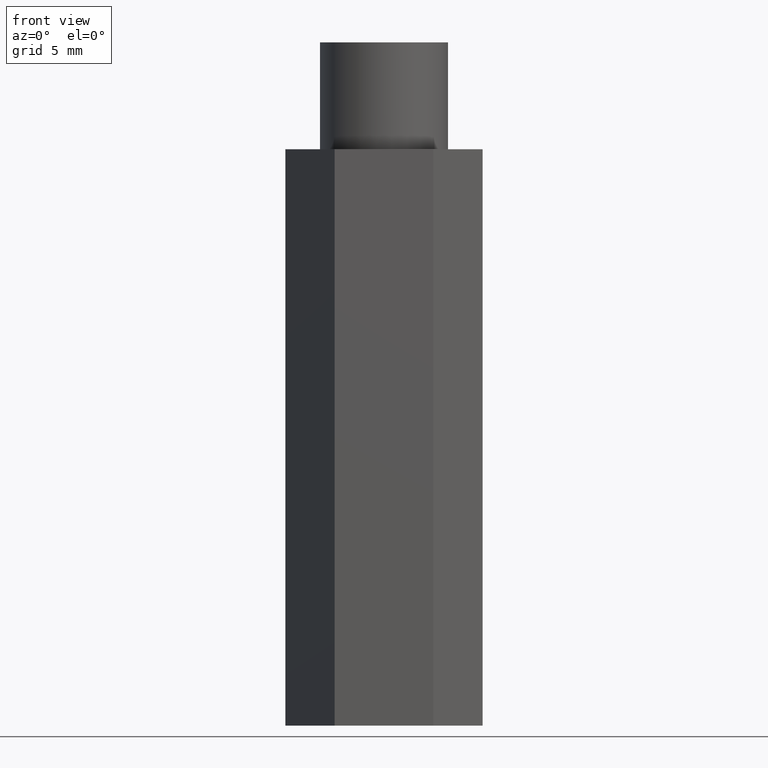
[diagram: clean part render]
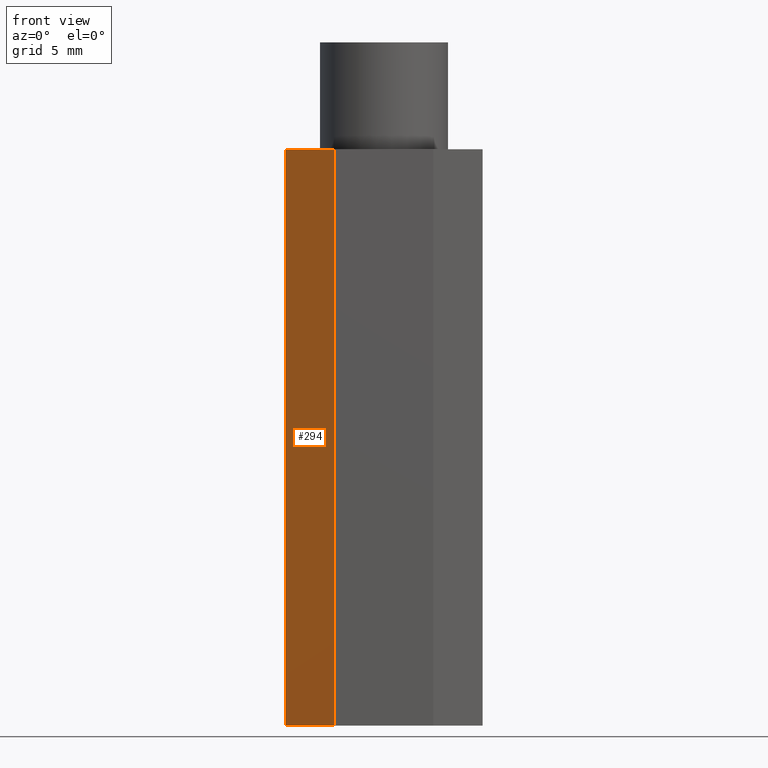
[diagram: same view with one face highlighted and labeled with its STEP entity id]
A machine part, front view. The second image highlights one B-rep face of the part: STEP entity #294.
In plain terms, the highlighted planar face has unit normal (0.866, 0.5, -0).
Its self-contained STEP definition (entity closure, byte-faithful):
#9 = VERTEX_POINT ( 'NONE', #105 ) ;
#12 = PLANE ( 'NONE',  #115 ) ;
#20 = FACE_OUTER_BOUND ( 'NONE', #318, .T. ) ;
#23 = ORIENTED_EDGE ( 'NONE', *, *, #247, .F. ) ;
#26 = CARTESIAN_POINT ( 'NONE',  ( -0.2886751345948129200, 3.414809992080329000E-017, 1.687000000000000100 ) ) ;
#30 = CARTESIAN_POINT ( 'NONE',  ( -0.2886751345948129200, 3.414809992080329000E-017, 0.0000000000000000000 ) ) ;
#38 = DIRECTION ( 'NONE',  ( 0.5000000000000003300, -0.8660254037844383700, 0.0000000000000000000 ) ) ;
#39 = VECTOR ( 'NONE', #38, 39.37007874015748100 ) ;
#47 = ORIENTED_EDGE ( 'NONE', *, *, #310, .T. ) ;
#59 = CARTESIAN_POINT ( 'NONE',  ( -0.2886751345948129200, 3.414809992080329000E-017, 0.0000000000000000000 ) ) ;
#75 = VERTEX_POINT ( 'NONE', #26 ) ;
#80 = VERTEX_POINT ( 'NONE', #59 ) ;
#92 = DIRECTION ( 'NONE',  ( -0.5000000000000003300, 0.8660254037844383700, 0.0000000000000000000 ) ) ;
#94 = DIRECTION ( 'NONE',  ( -0.0000000000000000000, -0.0000000000000000000, -1.000000000000000000 ) ) ;
#99 = VECTOR ( 'NONE', #305, 39.37007874015748100 ) ;
#105 = CARTESIAN_POINT ( 'NONE',  ( -0.1443375672974062700, -0.2500000000000001100, 0.0000000000000000000 ) ) ;
#115 = AXIS2_PLACEMENT_3D ( 'NONE', #339, #252, #92 ) ;
#124 = VECTOR ( 'NONE', #94, 39.37007874015748100 ) ;
#144 = CARTESIAN_POINT ( 'NONE',  ( -0.2886751345948129200, 3.414809992080329000E-017, 1.687000000000000100 ) ) ;
#149 = LINE ( 'NONE', #144, #39 ) ;
#193 = ORIENTED_EDGE ( 'NONE', *, *, #226, .F. ) ;
#194 = DIRECTION ( 'NONE',  ( 0.5000000000000003300, -0.8660254037844383700, 0.0000000000000000000 ) ) ;
#197 = CARTESIAN_POINT ( 'NONE',  ( -0.1443375672974062700, -0.2500000000000001100, 1.687000000000000100 ) ) ;
#199 = VECTOR ( 'NONE', #194, 39.37007874015748100 ) ;
#207 = EDGE_CURVE ( 'NONE', #80, #9, #329, .T. ) ;
#226 = EDGE_CURVE ( 'NONE', #357, #9, #245, .T. ) ;
#229 = CARTESIAN_POINT ( 'NONE',  ( -0.1443375672974062700, -0.2500000000000001100, 1.687000000000000100 ) ) ;
#245 = LINE ( 'NONE', #197, #99 ) ;
#247 = EDGE_CURVE ( 'NONE', #75, #357, #149, .T. ) ;
#252 = DIRECTION ( 'NONE',  ( 0.8660254037844384900, 0.5000000000000004400, -0.0000000000000000000 ) ) ;
#254 = CARTESIAN_POINT ( 'NONE',  ( -0.2886751345948129200, 3.414809992080329000E-017, 1.687000000000000100 ) ) ;
#294 = ADVANCED_FACE ( 'NONE', ( #20 ), #12, .F. ) ;
#295 = ORIENTED_EDGE ( 'NONE', *, *, #207, .T. ) ;
#305 = DIRECTION ( 'NONE',  ( -0.0000000000000000000, -0.0000000000000000000, -1.000000000000000000 ) ) ;
#310 = EDGE_CURVE ( 'NONE', #75, #80, #328, .T. ) ;
#318 = EDGE_LOOP ( 'NONE', ( #295, #193, #23, #47 ) ) ;
#328 = LINE ( 'NONE', #254, #124 ) ;
#329 = LINE ( 'NONE', #30, #199 ) ;
#339 = CARTESIAN_POINT ( 'NONE',  ( -0.2886751345948129200, 3.414809992080329000E-017, 1.687000000000000100 ) ) ;
#357 = VERTEX_POINT ( 'NONE', #229 ) ;